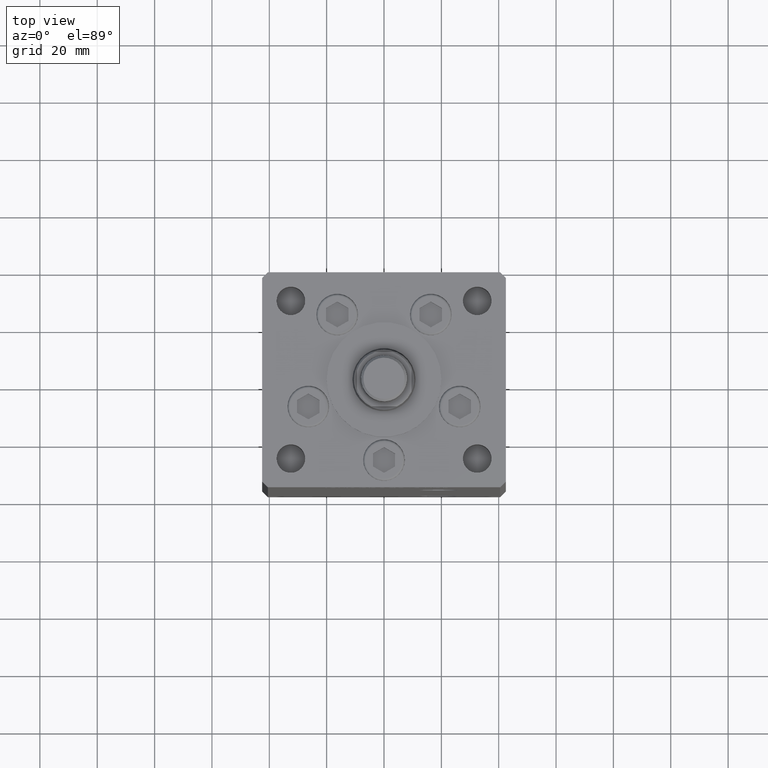
[diagram: clean part render]
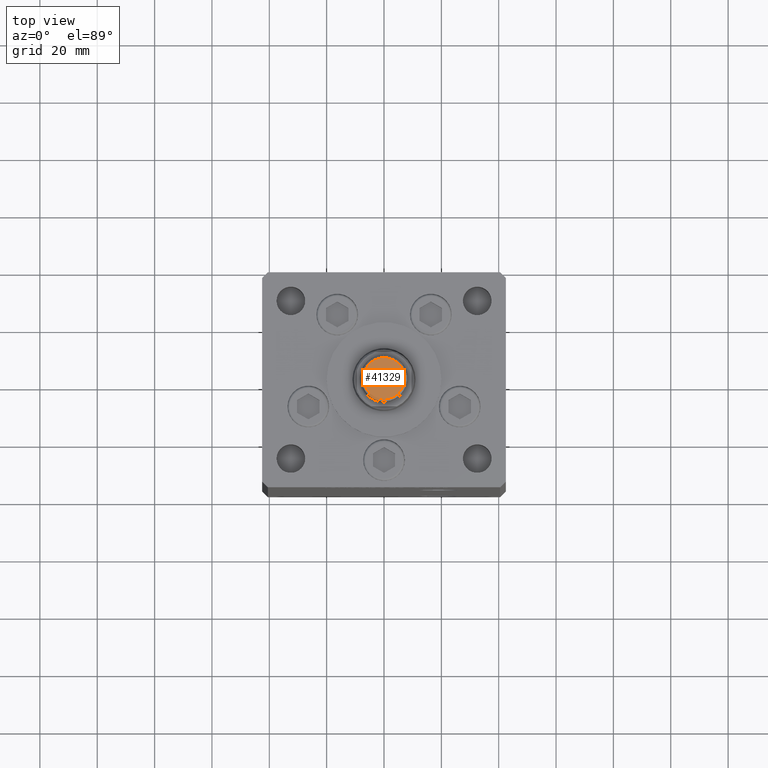
[diagram: same view with one face highlighted and labeled with its STEP entity id]
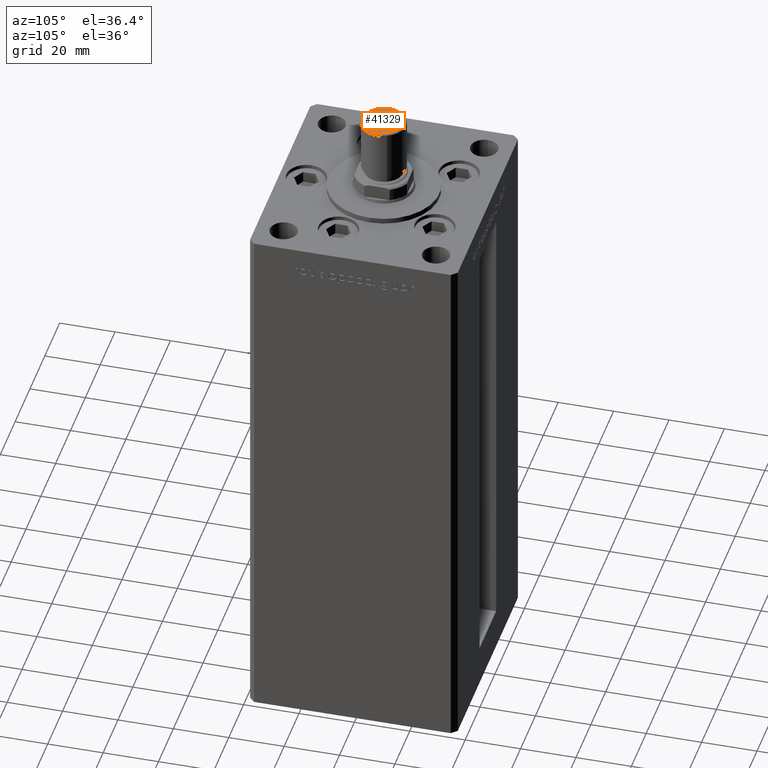
[diagram: same view with one face highlighted and labeled with its STEP entity id]
A machine part, top view. The second image highlights one B-rep face of the part: STEP entity #41329.
A second angle (auxiliary view) of the same face is appended — the face is thin or edge-on in the first view.
In plain terms, the highlighted planar face has unit normal (0, 0, -1).
Its self-contained STEP definition (entity closure, byte-faithful):
#529 = DIRECTION ( 'NONE',  ( 1.000000000000000000, 0.000000000000000000, 0.000000000000000000 ) ) ;
#2785 = VERTEX_POINT ( 'NONE', #27223 ) ;
#2840 = CARTESIAN_POINT ( 'NONE',  ( 7.199999999999987743, 0.000000000000000000, 0.000000000000000000 ) ) ;
#4215 = ORIENTED_EDGE ( 'NONE', *, *, #48321, .T. ) ;
#5411 = PLANE ( 'NONE',  #51448 ) ;
#7835 = DIRECTION ( 'NONE',  ( 1.000000000000000000, 0.000000000000000000, 0.000000000000000000 ) ) ;
#9805 = DIRECTION ( 'NONE',  ( -0.000000000000000000, -0.000000000000000000, -1.000000000000000000 ) ) ;
#13877 = FACE_OUTER_BOUND ( 'NONE', #32541, .T. ) ;
#17251 = CARTESIAN_POINT ( 'NONE',  ( 0.000000000000000000, 0.000000000000000000, 0.000000000000000000 ) ) ;
#19479 = AXIS2_PLACEMENT_3D ( 'NONE', #17251, #9805, #529 ) ;
#20002 = CIRCLE ( 'NONE', #31865, 7.199999999999987743 ) ;
#20773 = VERTEX_POINT ( 'NONE', #2840 ) ;
#26327 = DIRECTION ( 'NONE',  ( 1.000000000000000000, 0.000000000000000000, -0.000000000000000000 ) ) ;
#27223 = CARTESIAN_POINT ( 'NONE',  ( -7.199999999999987743, 9.307315673519877571E-16, 0.000000000000000000 ) ) ;
#29806 = DIRECTION ( 'NONE',  ( 0.000000000000000000, 0.000000000000000000, 1.000000000000000000 ) ) ;
#31865 = AXIS2_PLACEMENT_3D ( 'NONE', #35923, #44140, #7835 ) ;
#32541 = EDGE_LOOP ( 'NONE', ( #46062, #4215 ) ) ;
#33138 = EDGE_CURVE ( 'NONE', #20773, #2785, #20002, .T. ) ;
#33766 = CARTESIAN_POINT ( 'NONE',  ( 0.000000000000000000, 0.000000000000000000, 0.000000000000000000 ) ) ;
#35923 = CARTESIAN_POINT ( 'NONE',  ( 0.000000000000000000, 0.000000000000000000, 0.000000000000000000 ) ) ;
#41329 = ADVANCED_FACE ( 'NONE', ( #13877 ), #5411, .F. ) ;
#42328 = CIRCLE ( 'NONE', #19479, 7.199999999999987743 ) ;
#44140 = DIRECTION ( 'NONE',  ( -0.000000000000000000, -0.000000000000000000, -1.000000000000000000 ) ) ;
#46062 = ORIENTED_EDGE ( 'NONE', *, *, #33138, .T. ) ;
#48321 = EDGE_CURVE ( 'NONE', #2785, #20773, #42328, .T. ) ;
#51448 = AXIS2_PLACEMENT_3D ( 'NONE', #33766, #29806, #26327 ) ;